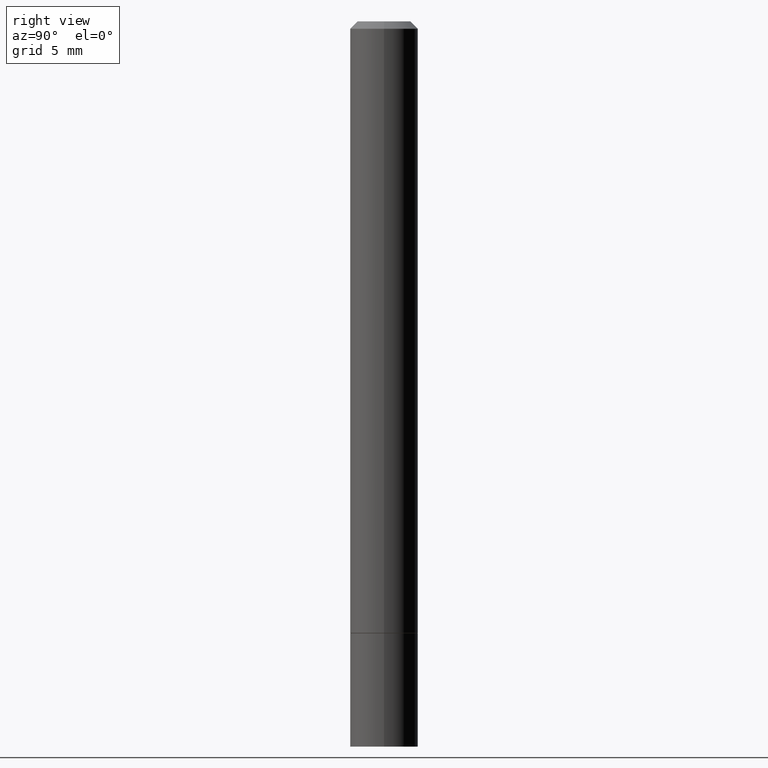
[diagram: clean part render]
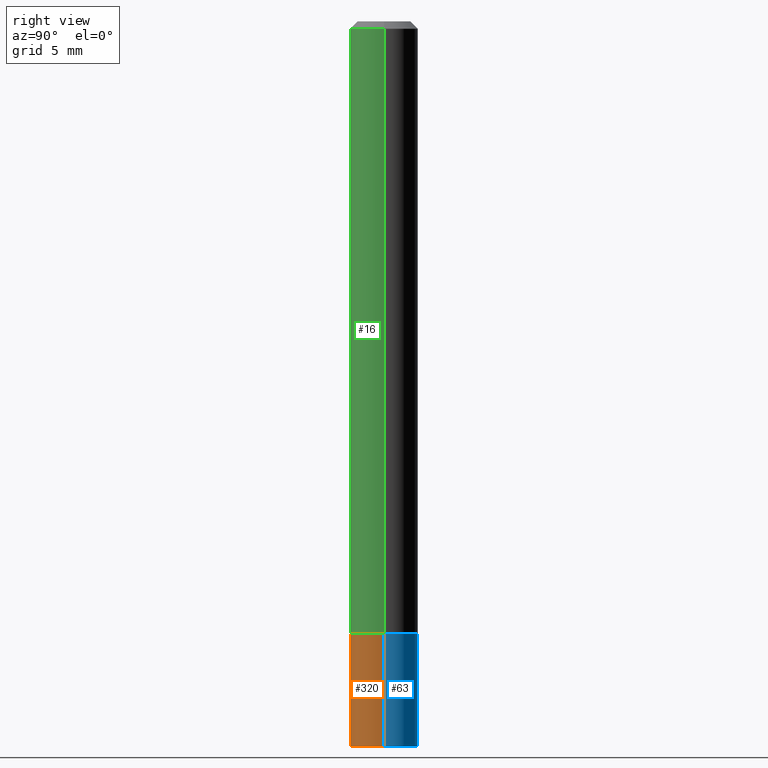
[diagram: same view with three faces highlighted in distinct colors, each labeled with its STEP entity id]
A machine part, right view with three faces highlighted in distinct colors.
Their STEP definitions:

[orange] entity #320 — the highlighted cylindrical surface (edge-blend (fillet) strip) has radius 2.3813 mm, axis along (-0, 0, 1).
#15 = ORIENTED_EDGE ( 'NONE', *, *, #293, .T. ) ;
#30 = CARTESIAN_POINT ( 'NONE',  ( 0.09375000000000001388, -7.637615428719378669E-15, -2.000000000000000000 ) ) ;
#39 = DIRECTION ( 'NONE',  ( -2.445468806185136597E-29, 3.491481338843145583E-15, 1.000000000000000000 ) ) ;
#42 = CARTESIAN_POINT ( 'NONE',  ( 0.000000000000000000, 0.000000000000000000, 0.000000000000000000 ) ) ;
#64 = DIRECTION ( 'NONE',  ( 1.000000000000000000, -6.982962677686261189E-15, 0.000000000000000000 ) ) ;
#71 = DIRECTION ( 'NONE',  ( 1.000000000000000000, -6.982962677686261189E-15, 0.000000000000000000 ) ) ;
#82 = VERTEX_POINT ( 'NONE', #30 ) ;
#83 = AXIS2_PLACEMENT_3D ( 'NONE', #297, #39, #71 ) ;
#91 = CARTESIAN_POINT ( 'NONE',  ( 0.09375000000000001388, -6.546527510330875041E-16, 4.571415727308690506E-30 ) ) ;
#93 = CARTESIAN_POINT ( 'NONE',  ( 4.126728610437418007E-29, -5.891874759297807259E-15, -1.687500000000000000 ) ) ;
#100 = CARTESIAN_POINT ( 'NONE',  ( -0.09375000000000001388, -5.771284903716954893E-15, -1.687500000000000000 ) ) ;
#120 = CARTESIAN_POINT ( 'NONE',  ( -0.09375000000000001388, -5.771284903716954893E-15, -2.000000000000000000 ) ) ;
#122 = AXIS2_PLACEMENT_3D ( 'NONE', #42, #244, #321 ) ;
#136 = EDGE_CURVE ( 'NONE', #275, #296, #196, .T. ) ;
#139 = EDGE_CURVE ( 'NONE', #82, #296, #229, .T. ) ;
#147 = VECTOR ( 'NONE', #262, 39.37007874015748143 ) ;
#152 = CARTESIAN_POINT ( 'NONE',  ( 0.09375000000000001388, -6.546527510330894763E-15, -1.687500000000000000 ) ) ;
#157 = LINE ( 'NONE', #315, #349 ) ;
#188 = VERTEX_POINT ( 'NONE', #120 ) ;
#196 = CIRCLE ( 'NONE', #207, 0.09375000000000001388 ) ;
#205 = FACE_OUTER_BOUND ( 'NONE', #278, .T. ) ;
#206 = DIRECTION ( 'NONE',  ( -2.445468806185136877E-29, 3.491481338843145188E-15, 1.000000000000000000 ) ) ;
#207 = AXIS2_PLACEMENT_3D ( 'NONE', #93, #341, #64 ) ;
#209 = CIRCLE ( 'NONE', #83, 0.09375000000000001388 ) ;
#222 = ORIENTED_EDGE ( 'NONE', *, *, #358, .F. ) ;
#229 = LINE ( 'NONE', #91, #147 ) ;
#239 = CYLINDRICAL_SURFACE ( 'NONE', #122, 0.09375000000000001388 ) ;
#244 = DIRECTION ( 'NONE',  ( -2.445468806185136597E-29, 3.491481338843145583E-15, 1.000000000000000000 ) ) ;
#262 = DIRECTION ( 'NONE',  ( -2.445468806185136877E-29, 3.491481338843145188E-15, 1.000000000000000000 ) ) ;
#275 = VERTEX_POINT ( 'NONE', #100 ) ;
#278 = EDGE_LOOP ( 'NONE', ( #222, #15, #361, #334 ) ) ;
#293 = EDGE_CURVE ( 'NONE', #188, #82, #209, .T. ) ;
#296 = VERTEX_POINT ( 'NONE', #152 ) ;
#297 = CARTESIAN_POINT ( 'NONE',  ( 4.890937612370273194E-29, -6.982962677686291165E-15, -2.000000000000000000 ) ) ;
#315 = CARTESIAN_POINT ( 'NONE',  ( -0.09375000000000001388, 6.661338147750940229E-16, -4.611501647113973995E-30 ) ) ;
#320 = ADVANCED_FACE ( 'NONE', ( #205 ), #239, .T. ) ;
#321 = DIRECTION ( 'NONE',  ( 1.000000000000000000, -6.982962677686265922E-15, 4.876176775795935793E-29 ) ) ;
#334 = ORIENTED_EDGE ( 'NONE', *, *, #136, .F. ) ;
#341 = DIRECTION ( 'NONE',  ( -2.445468806185136597E-29, 3.491481338843145583E-15, 1.000000000000000000 ) ) ;
#349 = VECTOR ( 'NONE', #206, 39.37007874015748143 ) ;
#358 = EDGE_CURVE ( 'NONE', #188, #275, #157, .T. ) ;
#361 = ORIENTED_EDGE ( 'NONE', *, *, #139, .T. ) ;

[blue] entity #63 — the highlighted cylindrical surface (edge-blend (fillet) strip) has radius 2.3813 mm, axis along (-0, 0, 1).
#1 = CARTESIAN_POINT ( 'NONE',  ( 4.890937612370273194E-29, -6.982962677686291165E-15, -2.000000000000000000 ) ) ;
#5 = ORIENTED_EDGE ( 'NONE', *, *, #98, .F. ) ;
#26 = ORIENTED_EDGE ( 'NONE', *, *, #139, .F. ) ;
#27 = EDGE_LOOP ( 'NONE', ( #301, #134, #5, #26 ) ) ;
#28 = DIRECTION ( 'NONE',  ( 1.000000000000000000, -6.982962677686261189E-15, 0.000000000000000000 ) ) ;
#30 = CARTESIAN_POINT ( 'NONE',  ( 0.09375000000000001388, -7.637615428719378669E-15, -2.000000000000000000 ) ) ;
#61 = EDGE_CURVE ( 'NONE', #82, #188, #155, .T. ) ;
#63 = ADVANCED_FACE ( 'NONE', ( #308 ), #199, .T. ) ;
#81 = AXIS2_PLACEMENT_3D ( 'NONE', #1, #232, #28 ) ;
#82 = VERTEX_POINT ( 'NONE', #30 ) ;
#89 = CARTESIAN_POINT ( 'NONE',  ( 4.126728610437418007E-29, -5.891874759297807259E-15, -1.687500000000000000 ) ) ;
#91 = CARTESIAN_POINT ( 'NONE',  ( 0.09375000000000001388, -6.546527510330875041E-16, 4.571415727308690506E-30 ) ) ;
#98 = EDGE_CURVE ( 'NONE', #296, #275, #343, .T. ) ;
#100 = CARTESIAN_POINT ( 'NONE',  ( -0.09375000000000001388, -5.771284903716954893E-15, -1.687500000000000000 ) ) ;
#117 = DIRECTION ( 'NONE',  ( 1.000000000000000000, -6.982962677686265922E-15, 4.876176775795935793E-29 ) ) ;
#120 = CARTESIAN_POINT ( 'NONE',  ( -0.09375000000000001388, -5.771284903716954893E-15, -2.000000000000000000 ) ) ;
#134 = ORIENTED_EDGE ( 'NONE', *, *, #358, .T. ) ;
#139 = EDGE_CURVE ( 'NONE', #82, #296, #229, .T. ) ;
#147 = VECTOR ( 'NONE', #262, 39.37007874015748143 ) ;
#152 = CARTESIAN_POINT ( 'NONE',  ( 0.09375000000000001388, -6.546527510330894763E-15, -1.687500000000000000 ) ) ;
#155 = CIRCLE ( 'NONE', #81, 0.09375000000000001388 ) ;
#157 = LINE ( 'NONE', #315, #349 ) ;
#188 = VERTEX_POINT ( 'NONE', #120 ) ;
#195 = CARTESIAN_POINT ( 'NONE',  ( 0.000000000000000000, 0.000000000000000000, 0.000000000000000000 ) ) ;
#199 = CYLINDRICAL_SURFACE ( 'NONE', #326, 0.09375000000000001388 ) ;
#206 = DIRECTION ( 'NONE',  ( -2.445468806185136877E-29, 3.491481338843145188E-15, 1.000000000000000000 ) ) ;
#229 = LINE ( 'NONE', #91, #147 ) ;
#232 = DIRECTION ( 'NONE',  ( -2.445468806185136597E-29, 3.491481338843145583E-15, 1.000000000000000000 ) ) ;
#262 = DIRECTION ( 'NONE',  ( -2.445468806185136877E-29, 3.491481338843145188E-15, 1.000000000000000000 ) ) ;
#275 = VERTEX_POINT ( 'NONE', #100 ) ;
#286 = DIRECTION ( 'NONE',  ( -2.445468806185136597E-29, 3.491481338843145583E-15, 1.000000000000000000 ) ) ;
#287 = DIRECTION ( 'NONE',  ( 1.000000000000000000, -6.982962677686261189E-15, 0.000000000000000000 ) ) ;
#296 = VERTEX_POINT ( 'NONE', #152 ) ;
#301 = ORIENTED_EDGE ( 'NONE', *, *, #61, .T. ) ;
#308 = FACE_OUTER_BOUND ( 'NONE', #27, .T. ) ;
#310 = DIRECTION ( 'NONE',  ( -2.445468806185136597E-29, 3.491481338843145583E-15, 1.000000000000000000 ) ) ;
#315 = CARTESIAN_POINT ( 'NONE',  ( -0.09375000000000001388, 6.661338147750940229E-16, -4.611501647113973995E-30 ) ) ;
#326 = AXIS2_PLACEMENT_3D ( 'NONE', #195, #310, #117 ) ;
#343 = CIRCLE ( 'NONE', #364, 0.09375000000000001388 ) ;
#349 = VECTOR ( 'NONE', #206, 39.37007874015748143 ) ;
#358 = EDGE_CURVE ( 'NONE', #188, #275, #157, .T. ) ;
#364 = AXIS2_PLACEMENT_3D ( 'NONE', #89, #286, #287 ) ;

[green] entity #16 — the highlighted cylindrical surface (edge-blend (fillet) strip) has radius 2.3812 mm, axis along (-0, 0, 1).
#2 = CARTESIAN_POINT ( 'NONE',  ( -0.09374999999999988898, 6.661338147750931354E-16, -4.611501647113968390E-30 ) ) ;
#13 = EDGE_CURVE ( 'NONE', #307, #50, #230, .T. ) ;
#16 = ADVANCED_FACE ( 'NONE', ( #254 ), #19, .T. ) ;
#19 = CYLINDRICAL_SURFACE ( 'NONE', #223, 0.09374999999999988898 ) ;
#20 = CIRCLE ( 'NONE', #214, 0.09374999999999979183 ) ;
#40 = EDGE_CURVE ( 'NONE', #307, #108, #92, .T. ) ;
#47 = DIRECTION ( 'NONE',  ( 1.000000000000000000, -6.982962677686265133E-15, 4.876176775795935793E-29 ) ) ;
#49 = AXIS2_PLACEMENT_3D ( 'NONE', #246, #302, #353 ) ;
#50 = VERTEX_POINT ( 'NONE', #57 ) ;
#57 = CARTESIAN_POINT ( 'NONE',  ( 0.09375000000000001388, -6.543036028992051756E-15, -1.686499999999999888 ) ) ;
#84 = EDGE_CURVE ( 'NONE', #50, #126, #285, .T. ) ;
#92 = LINE ( 'NONE', #2, #111 ) ;
#103 = EDGE_CURVE ( 'NONE', #108, #126, #20, .T. ) ;
#108 = VERTEX_POINT ( 'NONE', #143 ) ;
#111 = VECTOR ( 'NONE', #309, 39.37007874015748143 ) ;
#115 = DIRECTION ( 'NONE',  ( -2.445468806185136597E-29, 3.491481338843145583E-15, 1.000000000000000000 ) ) ;
#126 = VERTEX_POINT ( 'NONE', #168 ) ;
#137 = ORIENTED_EDGE ( 'NONE', *, *, #13, .T. ) ;
#141 = VECTOR ( 'NONE', #175, 39.37007874015748143 ) ;
#143 = CARTESIAN_POINT ( 'NONE',  ( -0.09374999999999979183, 5.848231242562229240E-16, -0.02000000000000003858 ) ) ;
#148 = DIRECTION ( 'NONE',  ( 1.000000000000000000, -6.982962677686266711E-15, 0.000000000000000000 ) ) ;
#168 = CARTESIAN_POINT ( 'NONE',  ( 0.09374999999999979183, -7.130013140679427058E-16, -0.02000000000000003858 ) ) ;
#175 = DIRECTION ( 'NONE',  ( -2.445468806185136877E-29, 3.491481338843145188E-15, 1.000000000000000000 ) ) ;
#186 = ORIENTED_EDGE ( 'NONE', *, *, #103, .F. ) ;
#214 = AXIS2_PLACEMENT_3D ( 'NONE', #263, #115, #148 ) ;
#217 = DIRECTION ( 'NONE',  ( -2.445468806185136597E-29, 3.491481338843145583E-15, 1.000000000000000000 ) ) ;
#223 = AXIS2_PLACEMENT_3D ( 'NONE', #360, #217, #47 ) ;
#230 = CIRCLE ( 'NONE', #49, 0.09375000000000001388 ) ;
#231 = CARTESIAN_POINT ( 'NONE',  ( 0.09374999999999988898, -6.546527510330866166E-16, 4.571415727308684201E-30 ) ) ;
#246 = CARTESIAN_POINT ( 'NONE',  ( 4.124283141631232404E-29, -5.888383277958965040E-15, -1.686499999999999888 ) ) ;
#254 = FACE_OUTER_BOUND ( 'NONE', #292, .T. ) ;
#263 = CARTESIAN_POINT ( 'NONE',  ( 4.890937612370282792E-31, -6.982962677686303935E-17, -0.02000000000000003858 ) ) ;
#269 = CARTESIAN_POINT ( 'NONE',  ( -0.09375000000000001388, -2.312972637592815906E-15, -1.686499999999999888 ) ) ;
#281 = ORIENTED_EDGE ( 'NONE', *, *, #40, .F. ) ;
#285 = LINE ( 'NONE', #231, #141 ) ;
#292 = EDGE_LOOP ( 'NONE', ( #281, #137, #303, #186 ) ) ;
#302 = DIRECTION ( 'NONE',  ( -2.445468806185136597E-29, 3.491481338843145583E-15, 1.000000000000000000 ) ) ;
#303 = ORIENTED_EDGE ( 'NONE', *, *, #84, .T. ) ;
#307 = VERTEX_POINT ( 'NONE', #269 ) ;
#309 = DIRECTION ( 'NONE',  ( -2.445468806185136877E-29, 3.491481338843145188E-15, 1.000000000000000000 ) ) ;
#353 = DIRECTION ( 'NONE',  ( 1.000000000000000000, -6.982962677686261189E-15, 0.000000000000000000 ) ) ;
#360 = CARTESIAN_POINT ( 'NONE',  ( 0.000000000000000000, 0.000000000000000000, 0.000000000000000000 ) ) ;